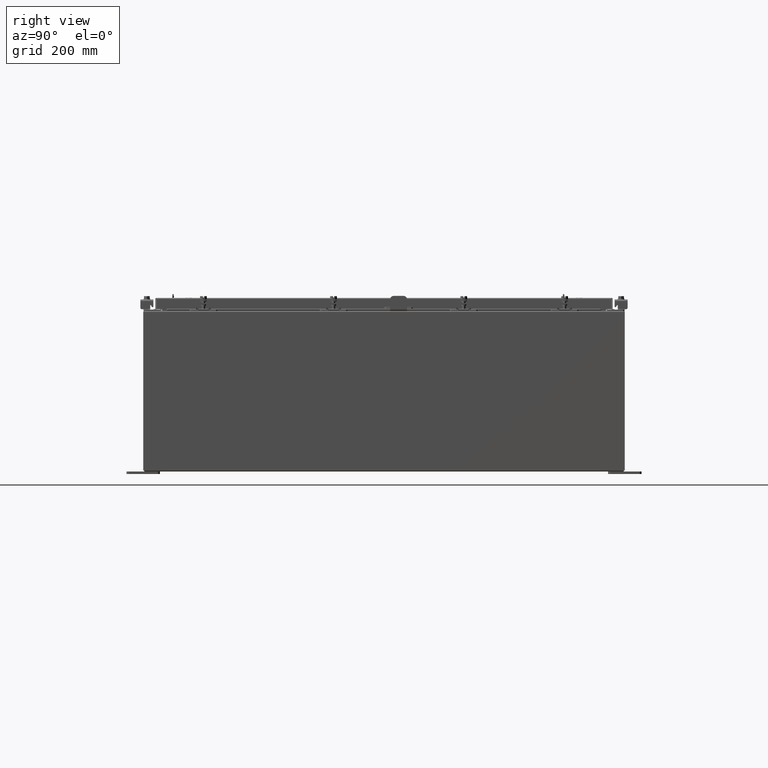
[diagram: clean part render]
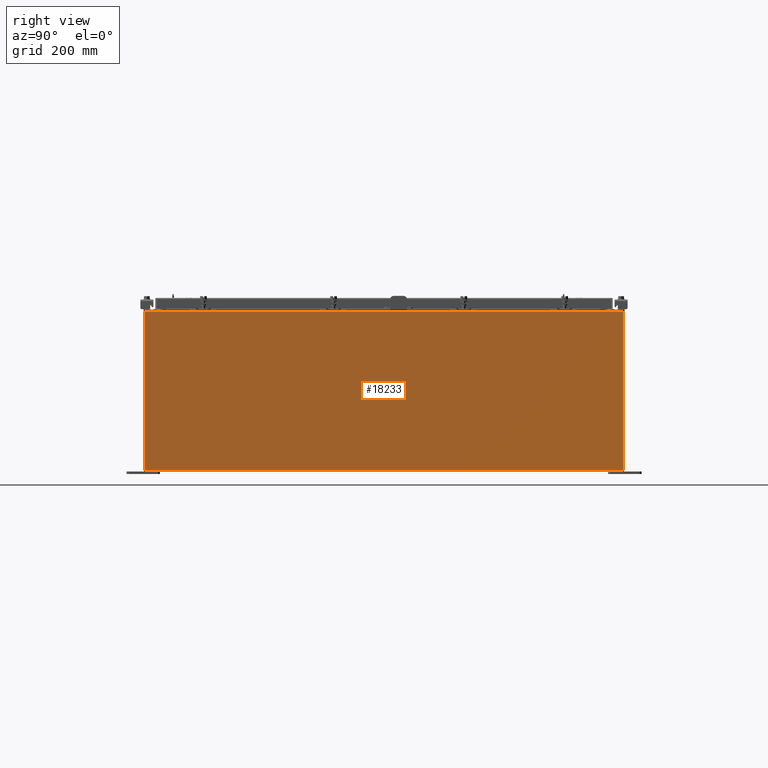
[diagram: same view with one face highlighted and labeled with its STEP entity id]
A machine part, right view. The second image highlights one B-rep face of the part: STEP entity #18233.
In plain terms, the highlighted planar face has unit normal (-1, 0, 0).
Its self-contained STEP definition (entity closure, byte-faithful):
#252 = CARTESIAN_POINT ( 'NONE',  ( 18.00000000000000000, -17.92530000000000000, 0.01299999999999984700 ) ) ;
#511 = AXIS2_PLACEMENT_3D ( 'NONE', #24924, #12191, #27059 ) ;
#1836 = ORIENTED_EDGE ( 'NONE', *, *, #18067, .T. ) ;
#1904 = DIRECTION ( 'NONE',  ( 3.482016343714355500E-015, -1.832640180902292400E-016, 1.000000000000000000 ) ) ;
#2381 = VECTOR ( 'NONE', #1904, 39.37007874015748100 ) ;
#3321 = VERTEX_POINT ( 'NONE', #15275 ) ;
#4118 = DIRECTION ( 'NONE',  ( -3.482016343714355500E-015, 0.0000000000000000000, -1.000000000000000000 ) ) ;
#5202 = DIRECTION ( 'NONE',  ( -0.0000000000000000000, -1.000000000000000000, -0.0000000000000000000 ) ) ;
#5753 = VECTOR ( 'NONE', #4118, 39.37007874015748100 ) ;
#7835 = LINE ( 'NONE', #8007, #2381 ) ;
#8007 = CARTESIAN_POINT ( 'NONE',  ( 18.00000000000000000, 17.92530000000000000, -5.965204533939718800E-014 ) ) ;
#8279 = VECTOR ( 'NONE', #5202, 39.37007874015748100 ) ;
#9989 = LINE ( 'NONE', #252, #20517 ) ;
#10123 = PLANE ( 'NONE',  #511 ) ;
#10662 = DIRECTION ( 'NONE',  ( 2.122662239958547800E-031, -1.000000000000000000, 6.096072018129156600E-017 ) ) ;
#12191 = DIRECTION ( 'NONE',  ( -1.000000000000000000, 0.0000000000000000000, 3.482016343714355100E-015 ) ) ;
#14469 = VERTEX_POINT ( 'NONE', #15899 ) ;
#15275 = CARTESIAN_POINT ( 'NONE',  ( 18.00000000000000000, 17.92530000000000000, 0.01299999999999766100 ) ) ;
#15709 = ORIENTED_EDGE ( 'NONE', *, *, #16485, .T. ) ;
#15899 = CARTESIAN_POINT ( 'NONE',  ( 18.00000000000000000, -17.92530000000000000, 0.01300000000000022700 ) ) ;
#16485 = EDGE_CURVE ( 'NONE', #18380, #14469, #22560, .T. ) ;
#16531 = EDGE_CURVE ( 'NONE', #3321, #14469, #9989, .T. ) ;
#17735 = CARTESIAN_POINT ( 'NONE',  ( 18.00000000000004300, 17.92530000000000000, 11.83760000000000200 ) ) ;
#18067 = EDGE_CURVE ( 'NONE', #21184, #18380, #24476, .T. ) ;
#18233 = ADVANCED_FACE ( 'NONE', ( #26796 ), #10123, .F. ) ;
#18380 = VERTEX_POINT ( 'NONE', #21183 ) ;
#19178 = EDGE_LOOP ( 'NONE', ( #1836, #15709, #26197, #27036 ) ) ;
#20391 = EDGE_CURVE ( 'NONE', #3321, #21184, #7835, .T. ) ;
#20517 = VECTOR ( 'NONE', #10662, 39.37007874015748100 ) ;
#20903 = CARTESIAN_POINT ( 'NONE',  ( 18.00000000000000000, -17.92530000000000000, -6.293710784286997500E-014 ) ) ;
#21183 = CARTESIAN_POINT ( 'NONE',  ( 18.00000000000004300, -17.92530000000000000, 11.83760000000000200 ) ) ;
#21184 = VERTEX_POINT ( 'NONE', #25447 ) ;
#22560 = LINE ( 'NONE', #20903, #5753 ) ;
#24476 = LINE ( 'NONE', #17735, #8279 ) ;
#24924 = CARTESIAN_POINT ( 'NONE',  ( 18.00000000000000000, 0.0000000000000000000, -6.293710784286997500E-014 ) ) ;
#25447 = CARTESIAN_POINT ( 'NONE',  ( 18.00000000000004300, 17.92530000000000000, 11.83760000000000200 ) ) ;
#26197 = ORIENTED_EDGE ( 'NONE', *, *, #16531, .F. ) ;
#26796 = FACE_OUTER_BOUND ( 'NONE', #19178, .T. ) ;
#27036 = ORIENTED_EDGE ( 'NONE', *, *, #20391, .T. ) ;
#27059 = DIRECTION ( 'NONE',  ( 3.482016343714355100E-015, 0.0000000000000000000, 1.000000000000000000 ) ) ;